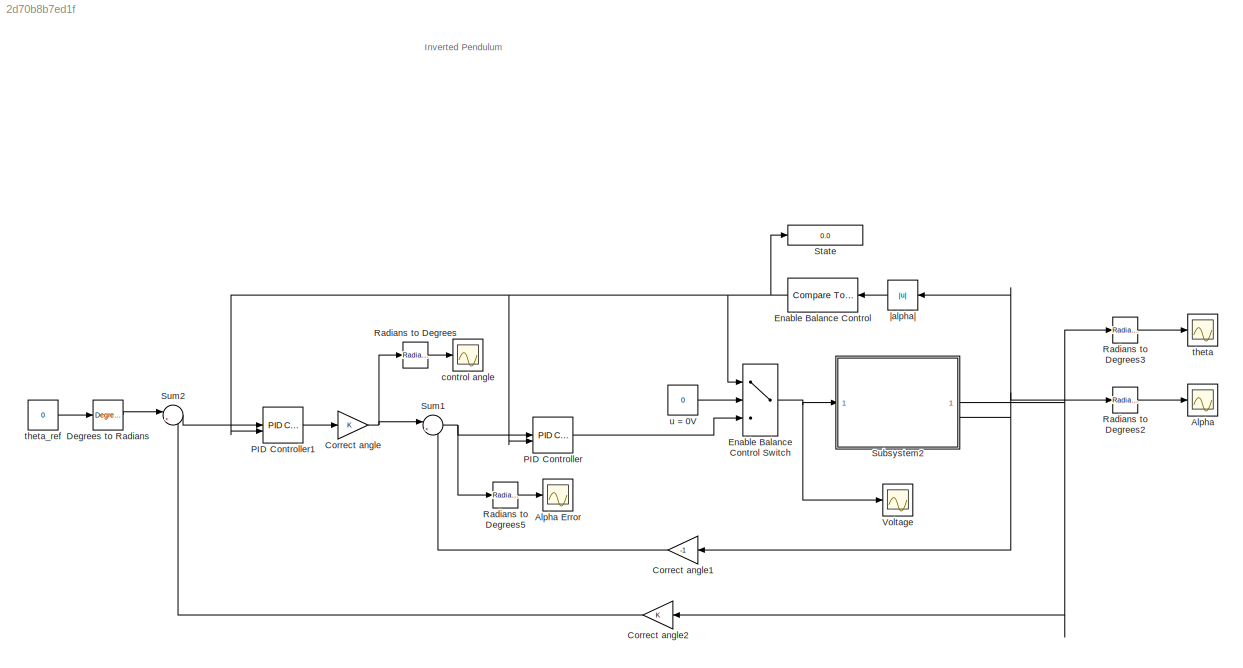
MODEL slx_2d70b8b7ed1f
KIND model
CONFIG AbsTol = auto
CONFIG EnableMultiTasking = on
CONFIG FixedStep = auto
CONFIG MaxStep = auto
CONFIG MinStep = auto
CONFIG RelTol = 1e-3
CONFIG SampleTimeConstraint = Unconstrained
CONFIG SolverName = FixedStepAuto
CONFIG StartTime = 0.0
CONFIG StopTime = inf
WORKSPACE source: mxarray member
WORKSPACE sampleRate = 0.01
BLOCK [Scope] Alpha
  Floating = off
  NumInputPorts = 1
  ScopeSpecificationString = Simulink.scopes.TimeScopeBlockCfg('CurrentConfiguration', extmgr.ConfigurationSet(extmgr.Configuration('Core','General UI',true),extmgr.Configuration('Core','Source UI',true),extmgr.Configuration('Sources','WiredSimulink',true,'DataLogging',true,'DataLoggingVariableName','ScopeData2','DataLoggingSaveFormat','Array','DataLoggingDecimation','1','DataLoggingDecimateData',true),extmgr.Configuration('V...<+1863ch>
BLOCK [Scope] Alpha Error
  Floating = off
  NumInputPorts = 1
  ScopeSpecificationString = Simulink.scopes.TimeScopeBlockCfg('CurrentConfiguration', extmgr.ConfigurationSet(extmgr.Configuration('Core','General UI',true),extmgr.Configuration('Core','Source UI',true),extmgr.Configuration('Sources','WiredSimulink',true,'DataLogging',true,'DataLoggingVariableName','ScopeData4','DataLoggingSaveFormat','Array','DataLoggingDecimation','1','DataLoggingDecimateData',true),extmgr.Configuration('V...<+1789ch>
BLOCK [Gain] Correct angle
  OutDataTypeStr = Inherit: Same as input
  ParamDataTypeStr = Inherit: Same as input
  SaturateOnIntegerOverflow = on
BLOCK [Gain] Correct angle1
  Gain = -1
  OutDataTypeStr = Inherit: Same as input
  ParamDataTypeStr = Inherit: Same as input
  SaturateOnIntegerOverflow = on
BLOCK [Gain] Correct angle2
  OutDataTypeStr = Inherit: Same as input
  ParamDataTypeStr = Inherit: Same as input
  SaturateOnIntegerOverflow = on
BLOCK [Reference] Degrees to Radians  REF=simulink_extras/Transformations/Degrees to
Radians
  SourceBlock = simulink_extras/Transformations/Degrees to\nRadians
  SourceType = DegreesToRadians
BLOCK [Reference] Enable Balance Control  REF=simulink/Logic and Bit
Operations/Compare
To Constant
  SourceBlock = simulink/Logic and Bit\nOperations/Compare\nTo Constant
  SourceType = Compare To Constant
BLOCK [MultiPortSwitch] Enable Balance Control Switch
  DataPortOrder = Zero-based contiguous
  InputSameDT = off
  Inputs = 2
  SaturateOnIntegerOverflow = off
  zeroidx = on
BLOCK [Reference] PID Controller  REF=slpidlib/PID Controller
  SourceBlock = slpidlib/PID Controller
  SourceType = PID 1dof
BLOCK [Reference] PID Controller1  REF=slpidlib/PID Controller
  SourceBlock = slpidlib/PID Controller
  SourceType = PID 1dof
BLOCK [Reference] Radians to Degrees  REF=simulink_extras/Transformations/Radians
to Degrees
  SourceBlock = simulink_extras/Transformations/Radians\nto Degrees
  SourceType = RadiansToDegrees
BLOCK [Reference] Radians to Degrees2  REF=simulink_extras/Transformations/Radians
to Degrees
  SourceBlock = simulink_extras/Transformations/Radians\nto Degrees
  SourceType = RadiansToDegrees
BLOCK [Reference] Radians to Degrees3  REF=simulink_extras/Transformations/Radians
to Degrees
  SourceBlock = simulink_extras/Transformations/Radians\nto Degrees
  SourceType = RadiansToDegrees
BLOCK [Reference] Radians to Degrees5  REF=simulink_extras/Transformations/Radians
to Degrees
  SourceBlock = simulink_extras/Transformations/Radians\nto Degrees
  SourceType = RadiansToDegrees
BLOCK [Display] State
  Decimation = 1
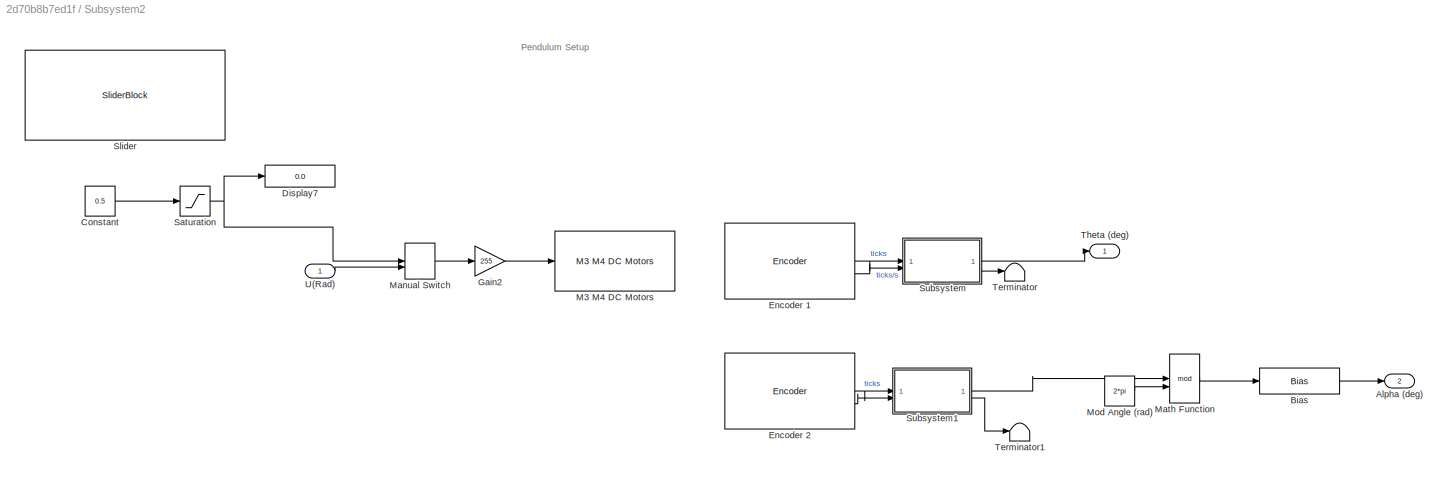
BLOCK [SubSystem] Subsystem2
BLOCK [Outport] Subsystem2/Alpha (deg)
  Port = 2
BLOCK [Bias] Subsystem2/Bias
  Bias = -pi
  SaturateOnIntegerOverflow = off
BLOCK [Constant] Subsystem2/Constant
  SampleTime = sampleRate
  Value = 0.5
BLOCK [Display] Subsystem2/Display7
  Decimation = 3
BLOCK [Reference] Subsystem2/Encoder 1  REF=arduinomotorcarrierlib/Encoder
  SourceBlock = arduinomotorcarrierlib/Encoder
  SourceType = motorcarrier.blocks.mkrmotorcarrier_Encoder
BLOCK [Reference] Subsystem2/Encoder 2  REF=arduinomotorcarrierlib/Encoder
  SourceBlock = arduinomotorcarrierlib/Encoder
  SourceType = motorcarrier.blocks.mkrmotorcarrier_Encoder
BLOCK [Gain] Subsystem2/Gain2
  Gain = 255
BLOCK [Reference] Subsystem2/M3 M4 DC Motors  REF=arduinomotorcarrierlib/M3 M4 DC Motors
  SourceBlock = arduinomotorcarrierlib/M3 M4 DC Motors
  SourceType = DC Motor
BLOCK [ManualSwitch] Subsystem2/Manual Switch
  CurrentSetting = 0
BLOCK [Math] Subsystem2/Math Function
  Operator = mod
  SignedPower = on
BLOCK [Constant] Subsystem2/Mod Angle (rad)
  Value = 2*pi
BLOCK [Saturate] Subsystem2/Saturation
  LowerLimit = -1
  UpperLimit = 1
BLOCK [SliderBlock] Subsystem2/Slider
  ScaleMax = 1
  ScaleMin = -1
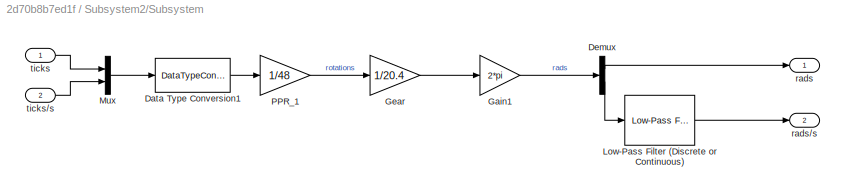
BLOCK [SubSystem] Subsystem2/Subsystem
BLOCK [DataTypeConversion] Subsystem2/Subsystem/Data Type Conversion1
  OutDataTypeStr = double
  RndMeth = Floor
  SaturateOnIntegerOverflow = off
BLOCK [Demux] Subsystem2/Subsystem/Demux
  Outputs = 2
BLOCK [Gain] Subsystem2/Subsystem/Gain1
  Gain = 2*pi
BLOCK [Gain] Subsystem2/Subsystem/Gear
  Gain = 1/20.4
BLOCK [Reference] Subsystem2/Subsystem/Low-Pass Filter (Discrete or Continuous)  REF=eeGeneralControl/Low-Pass Filter
(Discrete or Continuous)
  LibrarySourceBlock = ee_sl_lib/General Control/Low-Pass Filter\n(Discrete or Continuous)
  SourceBlock = eeGeneralControl/Low-Pass Filter\n(Discrete or Continuous)
  SourceType = Low-Pass Filter (Discrete or Continuous)
BLOCK [Mux] Subsystem2/Subsystem/Mux
  DisplayOption = bar
  Inputs = 2
BLOCK [Gain] Subsystem2/Subsystem/PPR_1
  Gain = 1/48
BLOCK [Outport] Subsystem2/Subsystem/rads
BLOCK [Outport] Subsystem2/Subsystem/rads//s
  Port = 2
BLOCK [Inport] Subsystem2/Subsystem/ticks
BLOCK [Inport] Subsystem2/Subsystem/ticks//s
  Port = 2
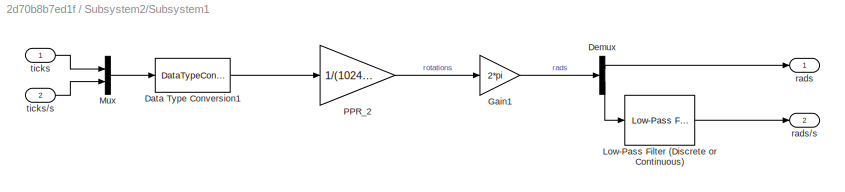
BLOCK [SubSystem] Subsystem2/Subsystem1
BLOCK [DataTypeConversion] Subsystem2/Subsystem1/Data Type Conversion1
  OutDataTypeStr = double
  RndMeth = Floor
  SaturateOnIntegerOverflow = off
BLOCK [Demux] Subsystem2/Subsystem1/Demux
  Outputs = 2
BLOCK [Gain] Subsystem2/Subsystem1/Gain1
  Gain = 2*pi
BLOCK [Reference] Subsystem2/Subsystem1/Low-Pass Filter (Discrete or Continuous)  REF=eeGeneralControl/Low-Pass Filter
(Discrete or Continuous)
  LibrarySourceBlock = ee_sl_lib/General Control/Low-Pass Filter\n(Discrete or Continuous)
  SourceBlock = eeGeneralControl/Low-Pass Filter\n(Discrete or Continuous)
  SourceType = Low-Pass Filter (Discrete or Continuous)
BLOCK [Mux] Subsystem2/Subsystem1/Mux
  DisplayOption = bar
  Inputs = 2
BLOCK [Gain] Subsystem2/Subsystem1/PPR_2
  Gain = 1/(1024*4)
BLOCK [Outport] Subsystem2/Subsystem1/rads
BLOCK [Outport] Subsystem2/Subsystem1/rads//s
  Port = 2
BLOCK [Inport] Subsystem2/Subsystem1/ticks
BLOCK [Inport] Subsystem2/Subsystem1/ticks//s
  Port = 2
BLOCK [Terminator] Subsystem2/Terminator
BLOCK [Terminator] Subsystem2/Terminator1
BLOCK [Outport] Subsystem2/Theta (deg)
BLOCK [Inport] Subsystem2/U(Rad)
BLOCK [Sum] Sum1
  Inputs = |+-
BLOCK [Sum] Sum2
  Inputs = |+-
BLOCK [Scope] Voltage
  Floating = off
  NumInputPorts = 1
  ScopeSpecificationString = Simulink.scopes.TimeScopeBlockCfg('CurrentConfiguration', extmgr.ConfigurationSet(extmgr.Configuration('Core','General UI',true),extmgr.Configuration('Core','Source UI',true),extmgr.Configuration('Sources','WiredSimulink',true,'DataLogging',true,'DataLoggingVariableName','ScopeData5','DataLoggingSaveFormat','Array','DataLoggingDecimation','1','DataLoggingDecimateData',true),extmgr.Configuration('V...<+1718ch>
BLOCK [Scope] control angle
  Floating = off
  NumInputPorts = 1
  ScopeSpecificationString = Simulink.scopes.TimeScopeBlockCfg('CurrentConfiguration', extmgr.ConfigurationSet(extmgr.Configuration('Core','General UI',true),extmgr.Configuration('Core','Source UI',true),extmgr.Configuration('Sources','WiredSimulink',true,'DataLogging',true,'DataLoggingVariableName','ScopeData6','DataLoggingSaveFormat','Array','DataLoggingDecimation','1','DataLoggingDecimateData',true),extmgr.Configuration('V...<+1755ch>
BLOCK [Scope] theta
  Floating = off
  NumInputPorts = 1
  ScopeSpecificationString = Simulink.scopes.TimeScopeBlockCfg('CurrentConfiguration', extmgr.ConfigurationSet(extmgr.Configuration('Core','General UI',true),extmgr.Configuration('Core','Source UI',true),extmgr.Configuration('Sources','WiredSimulink',true,'DataLogging',true,'DataLoggingVariableName','ScopeData7','DataLoggingSaveFormat','Array','DataLoggingDecimation','1','DataLoggingDecimateData',true),extmgr.Configuration('V...<+1792ch>
BLOCK [Constant] theta_ref
  Value = 0
BLOCK [Constant] u = 0V
  Value = 0
BLOCK [Abs] |alpha|
  SaturateOnIntegerOverflow = off
ANNOTATION (root): Inverted Pendulum
ANNOTATION Subsystem2: Pendulum Setup
LINE Correct angle1:1 -> Sum1:2
LINE Correct angle2:1 -> Sum2:2
NET Correct angle:1 -> Radians to Degrees:1, Sum1:1
LINE Degrees to Radians:1 -> Sum2:1
NET Enable Balance Control Switch:1 -> Subsystem2:1, Voltage:1
NET Enable Balance Control:1 -> Enable Balance Control Switch:1, PID Controller1:2, PID Controller:2, State:1
LINE PID Controller1:1 -> Correct angle:1
LINE PID Controller:1 -> Enable Balance Control Switch:3
LINE Radians to Degrees2:1 -> Alpha:1
LINE Radians to Degrees3:1 -> theta:1
LINE Radians to Degrees5:1 -> Alpha Error:1
LINE Radians to Degrees:1 -> control angle:1
LINE Subsystem2/Bias:1 -> Subsystem2/Alpha (deg):1
LINE Subsystem2/Constant:1 -> Subsystem2/Saturation:1
LINE Subsystem2/Encoder 1:1 -> Subsystem2/Subsystem:1
LINE Subsystem2/Encoder 1:2 -> Subsystem2/Subsystem:2
LINE Subsystem2/Encoder 2:1 -> Subsystem2/Subsystem1:1
LINE Subsystem2/Encoder 2:2 -> Subsystem2/Subsystem1:2
LINE Subsystem2/Gain2:1 -> Subsystem2/M3 M4 DC Motors:1
LINE Subsystem2/Manual Switch:1 -> Subsystem2/Gain2:1
LINE Subsystem2/Math Function:1 -> Subsystem2/Bias:1
LINE Subsystem2/Mod Angle (rad):1 -> Subsystem2/Math Function:2
NET Subsystem2/Saturation:1 -> Subsystem2/Display7:1, Subsystem2/Manual Switch:1
LINE Subsystem2/Subsystem/Data Type Conversion1:1 -> Subsystem2/Subsystem/PPR_1:1
LINE Subsystem2/Subsystem/Demux:1 -> Subsystem2/Subsystem/rads:1
LINE Subsystem2/Subsystem/Demux:2 -> Subsystem2/Subsystem/Low-Pass Filter (Discrete or Continuous):1
LINE Subsystem2/Subsystem/Gain1:1 -> Subsystem2/Subsystem/Demux:1
LINE Subsystem2/Subsystem/Gear:1 -> Subsystem2/Subsystem/Gain1:1
LINE Subsystem2/Subsystem/Low-Pass Filter (Discrete or Continuous):1 -> Subsystem2/Subsystem/rads//s:1
LINE Subsystem2/Subsystem/Mux:1 -> Subsystem2/Subsystem/Data Type Conversion1:1
LINE Subsystem2/Subsystem/PPR_1:1 -> Subsystem2/Subsystem/Gear:1
LINE Subsystem2/Subsystem/ticks//s:1 -> Subsystem2/Subsystem/Mux:2
LINE Subsystem2/Subsystem/ticks:1 -> Subsystem2/Subsystem/Mux:1
LINE Subsystem2/Subsystem1/Data Type Conversion1:1 -> Subsystem2/Subsystem1/PPR_2:1
LINE Subsystem2/Subsystem1/Demux:1 -> Subsystem2/Subsystem1/rads:1
LINE Subsystem2/Subsystem1/Demux:2 -> Subsystem2/Subsystem1/Low-Pass Filter (Discrete or Continuous):1
LINE Subsystem2/Subsystem1/Gain1:1 -> Subsystem2/Subsystem1/Demux:1
LINE Subsystem2/Subsystem1/Low-Pass Filter (Discrete or Continuous):1 -> Subsystem2/Subsystem1/rads//s:1
LINE Subsystem2/Subsystem1/Mux:1 -> Subsystem2/Subsystem1/Data Type Conversion1:1
LINE Subsystem2/Subsystem1/PPR_2:1 -> Subsystem2/Subsystem1/Gain1:1
LINE Subsystem2/Subsystem1/ticks//s:1 -> Subsystem2/Subsystem1/Mux:2
LINE Subsystem2/Subsystem1/ticks:1 -> Subsystem2/Subsystem1/Mux:1
LINE Subsystem2/Subsystem1:1 -> Subsystem2/Math Function:1
LINE Subsystem2/Subsystem1:2 -> Subsystem2/Terminator1:1
LINE Subsystem2/Subsystem:1 -> Subsystem2/Theta (deg):1
LINE Subsystem2/Subsystem:2 -> Subsystem2/Terminator:1
LINE Subsystem2/U(Rad):1 -> Subsystem2/Manual Switch:2
NET Subsystem2:1 -> Correct angle2:1, Radians to Degrees3:1
NET Subsystem2:2 -> Correct angle1:1, Radians to Degrees2:1, |alpha|:1
NET Sum1:1 -> PID Controller:1, Radians to Degrees5:1
LINE Sum2:1 -> PID Controller1:1
LINE theta_ref:1 -> Degrees to Radians:1
LINE u = 0V:1 -> Enable Balance Control Switch:2
LINE |alpha|:1 -> Enable Balance Control:1
note: NET lines group one-source signal fan-out (src -> all destinations, sorted); 1:1 wires keep LINE
